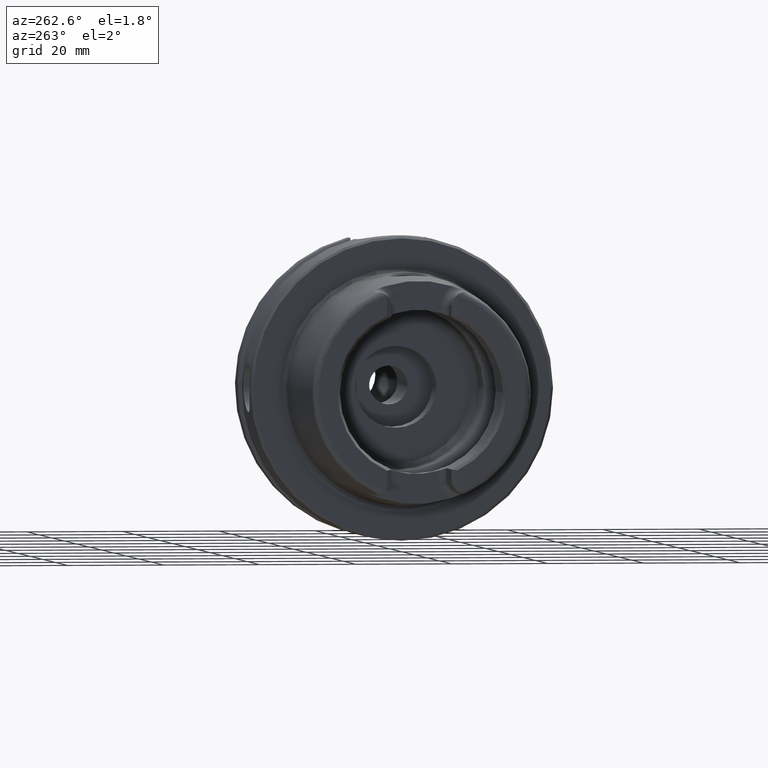
[diagram: clean part render]
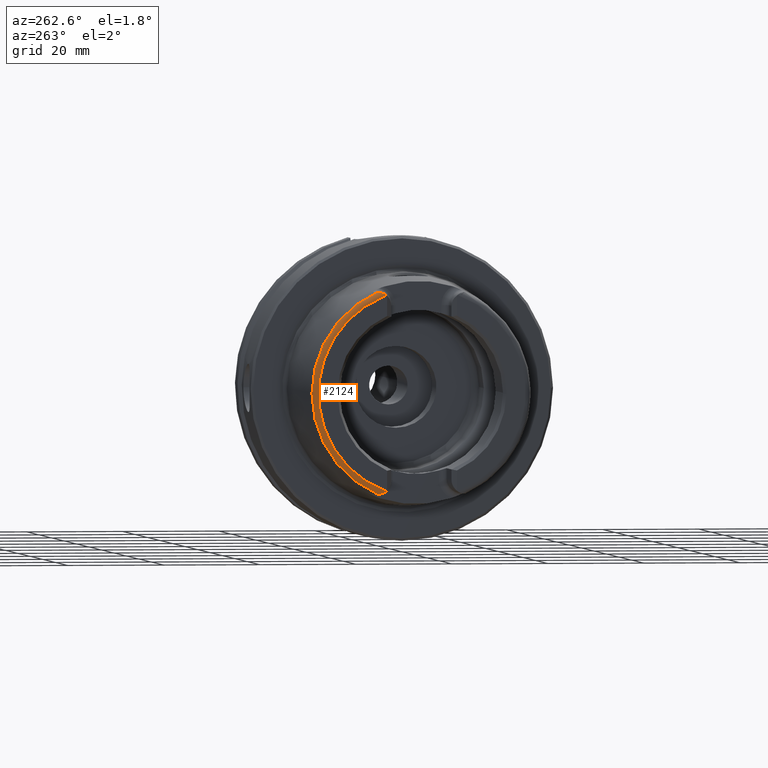
[diagram: same view with one face highlighted and labeled with its STEP entity id]
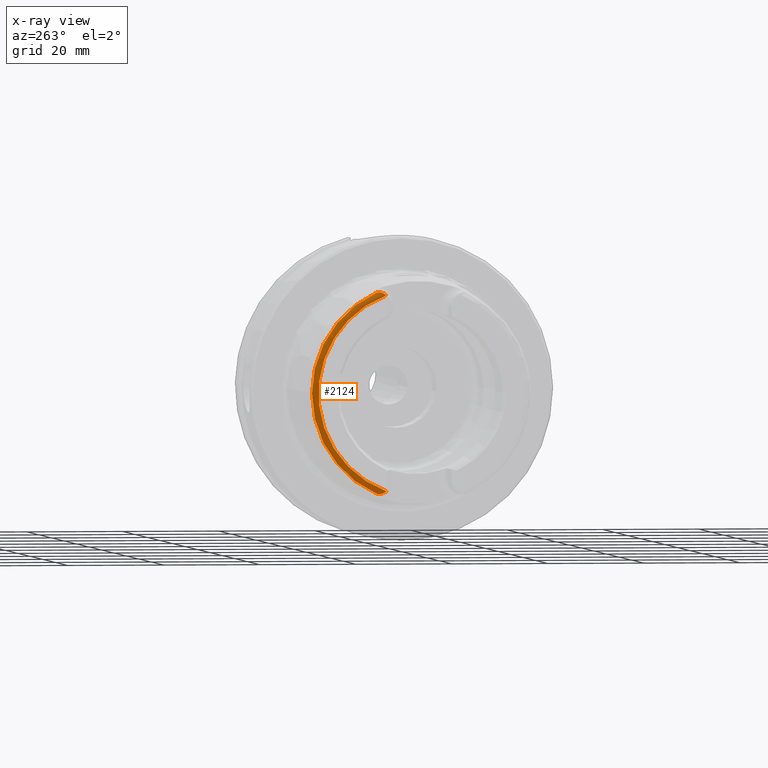
[diagram: x-ray of the same camera — body ghosted, the highlighted face saturated]
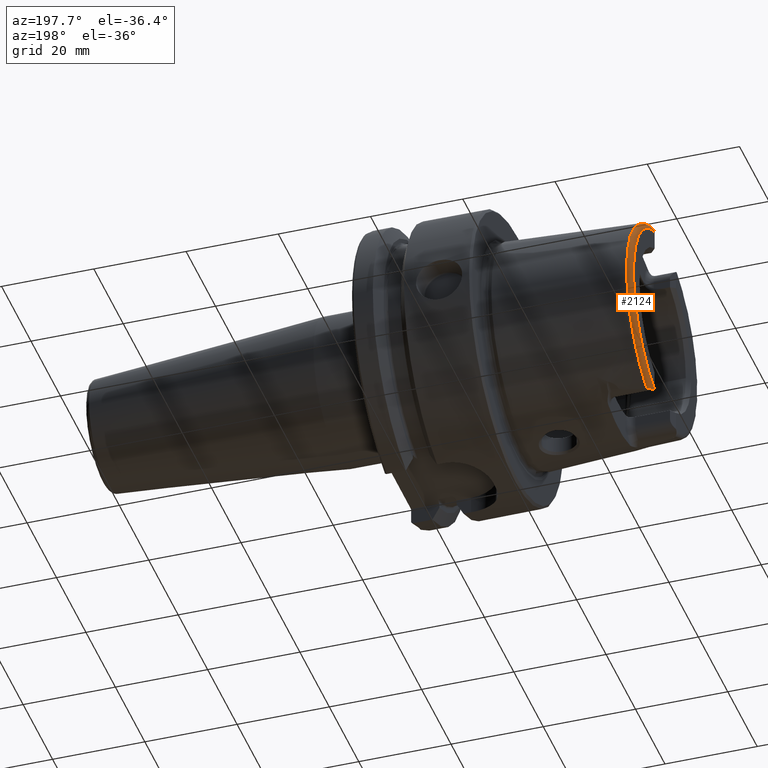
[diagram: same view with one face highlighted and labeled with its STEP entity id]
A machine part, auxiliary view. The second image highlights one B-rep face of the part: STEP entity #2124.
The next image is the same camera in x-ray: the body ghosted, the highlighted face saturated — about 0% of this face is hidden behind the body in this view.
A second angle (auxiliary view) of the same face is appended — the face is thin or edge-on in the first view.
In plain terms, the highlighted toroidal blend (fillet) surface has major radius 21.576 mm and minor (blend) radius 1.2 mm.
Its self-contained STEP definition (entity closure, byte-faithful):
#33=B_SPLINE_CURVE_WITH_KNOTS('',3,(#3242,#3243,#3244,#3245,#3246,#3247,
#3248,#3249,#3250,#3251,#3252,#3253),.UNSPECIFIED.,.F.,.F.,(4,2,2,2,2,4),
(-0.439971245205478,-0.413787817992068,-0.386870723320619,-0.314205730694733,
-0.242063220501312,-0.191373987051965),.UNSPECIFIED.);
#38=B_SPLINE_CURVE_WITH_KNOTS('',3,(#3343,#3344,#3345,#3346,#3347,#3348,
#3349,#3350,#3351,#3352,#3353,#3354),.UNSPECIFIED.,.F.,.F.,(4,2,2,2,2,4),
(-0.196594494202377,-0.162015792380097,-0.0987584756003746,-0.0492121500493367,
-0.0201918504309682,-3.59409225206588E-5),.UNSPECIFIED.);
#166=TOROIDAL_SURFACE('',#2384,21.5760400159857,1.2);
#321=FACE_OUTER_BOUND('',#455,.T.);
#455=EDGE_LOOP('',(#1914,#1915,#1916,#1917));
#740=CIRCLE('',#2251,22.7745368271334);
#805=CIRCLE('',#2383,21.5760400159857);
#883=VERTEX_POINT('',#3239);
#884=VERTEX_POINT('',#3241);
#903=VERTEX_POINT('',#3333);
#904=VERTEX_POINT('',#3342);
#1109=EDGE_CURVE('',#884,#883,#33,.T.);
#1132=EDGE_CURVE('',#904,#903,#38,.T.);
#1150=EDGE_CURVE('',#884,#903,#740,.T.);
#1329=EDGE_CURVE('',#883,#904,#805,.T.);
#1914=ORIENTED_EDGE('',*,*,#1132,.T.);
#1915=ORIENTED_EDGE('',*,*,#1150,.F.);
#1916=ORIENTED_EDGE('',*,*,#1109,.T.);
#1917=ORIENTED_EDGE('',*,*,#1329,.T.);
#2124=ADVANCED_FACE('',(#321),#166,.T.);
#2251=AXIS2_PLACEMENT_3D('',#3571,#2640,#2641);
#2383=AXIS2_PLACEMENT_3D('',#4473,#2963,#2964);
#2384=AXIS2_PLACEMENT_3D('',#4474,#2965,#2966);
#2640=DIRECTION('center_axis',(1.,0.,0.));
#2641=DIRECTION('ref_axis',(0.,0.,-1.));
#2963=DIRECTION('center_axis',(1.,0.,0.));
#2964=DIRECTION('ref_axis',(0.,0.,-1.));
#2965=DIRECTION('center_axis',(1.,0.,0.));
#2966=DIRECTION('ref_axis',(0.,0.,-1.));
#3239=CARTESIAN_POINT('',(-32.,7.39118810947246,-20.2705658801576));
#3241=CARTESIAN_POINT('',(-30.8600449304182,9.1175788960984,-20.8698175067219));
#3242=CARTESIAN_POINT('Ctrl Pts',(-30.8600449304182,9.11757889609839,-20.8698175067219));
#3243=CARTESIAN_POINT('Ctrl Pts',(-30.9283482575805,9.10924589065498,-20.869723693404));
#3244=CARTESIAN_POINT('Ctrl Pts',(-30.993271833442,9.08711423752726,-20.869481166787));
#3245=CARTESIAN_POINT('Ctrl Pts',(-31.1175295394099,9.02410248673809,-20.8674243938042));
#3246=CARTESIAN_POINT('Ctrl Pts',(-31.1766323882079,8.98273168347476,-20.8654949507798));
#3247=CARTESIAN_POINT('Ctrl Pts',(-31.3771588963276,8.81568608992481,-20.853140478981));
#3248=CARTESIAN_POINT('Ctrl Pts',(-31.5206715121349,8.63879728066883,-20.8319176028095));
#3249=CARTESIAN_POINT('Ctrl Pts',(-31.7691415784724,8.23645855855542,-20.7290954164696));
#3250=CARTESIAN_POINT('Ctrl Pts',(-31.8687101576321,8.02133155327414,-20.6499424381211));
#3251=CARTESIAN_POINT('Ctrl Pts',(-31.9745830679216,7.66828298917771,-20.4650680358065));
#3252=CARTESIAN_POINT('Ctrl Pts',(-32.,7.52538170482901,-20.3740583042087));
#3253=CARTESIAN_POINT('Ctrl Pts',(-32.,7.39118810947247,-20.2705658801576));
#3333=CARTESIAN_POINT('',(-30.8600449304182,9.1175788960984,20.8698175067219));
#3342=CARTESIAN_POINT('',(-32.,7.39118810947246,20.2705658801576));
#3343=CARTESIAN_POINT('Ctrl Pts',(-32.,7.39118810947247,20.2705658801576));
#3344=CARTESIAN_POINT('Ctrl Pts',(-32.,7.5108721598535,20.3628682919178));
#3345=CARTESIAN_POINT('Ctrl Pts',(-31.9797330717779,7.63776168900947,20.4454948383081));
#3346=CARTESIAN_POINT('Ctrl Pts',(-31.8791506793963,8.00524977105305,20.646558514632));
#3347=CARTESIAN_POINT('Ctrl Pts',(-31.765597681806,8.24658605272637,20.7334672105939));
#3348=CARTESIAN_POINT('Ctrl Pts',(-31.5253369252513,8.62735746584638,20.8274140198604));
#3349=CARTESIAN_POINT('Ctrl Pts',(-31.4073954734027,8.77570244905025,20.847801807847));
#3350=CARTESIAN_POINT('Ctrl Pts',(-31.2163518404642,8.95387229883953,20.8640739602076));
#3351=CARTESIAN_POINT('Ctrl Pts',(-31.1366672867121,9.0150934584885,20.867161983441));
#3352=CARTESIAN_POINT('Ctrl Pts',(-30.990207154745,9.08815496121785,20.8694917701067));
#3353=CARTESIAN_POINT('Ctrl Pts',(-30.9267310903117,9.10944318505063,20.8697259145524));
#3354=CARTESIAN_POINT('Ctrl Pts',(-30.8600449304182,9.11757889609838,20.8698175067219));
#3571=CARTESIAN_POINT('Origin',(-30.8600449304182,0.,0.));
#4473=CARTESIAN_POINT('Origin',(-32.,0.,0.));
#4474=CARTESIAN_POINT('Origin',(-30.8,0.,0.));